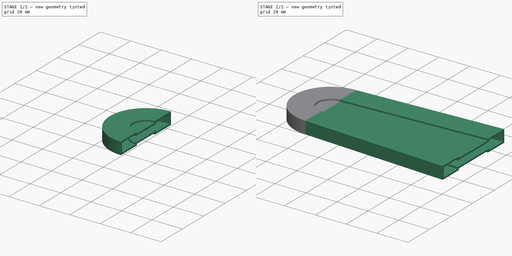
[diagram: build sequence overview — one tinted view per stage of 2, left to right]
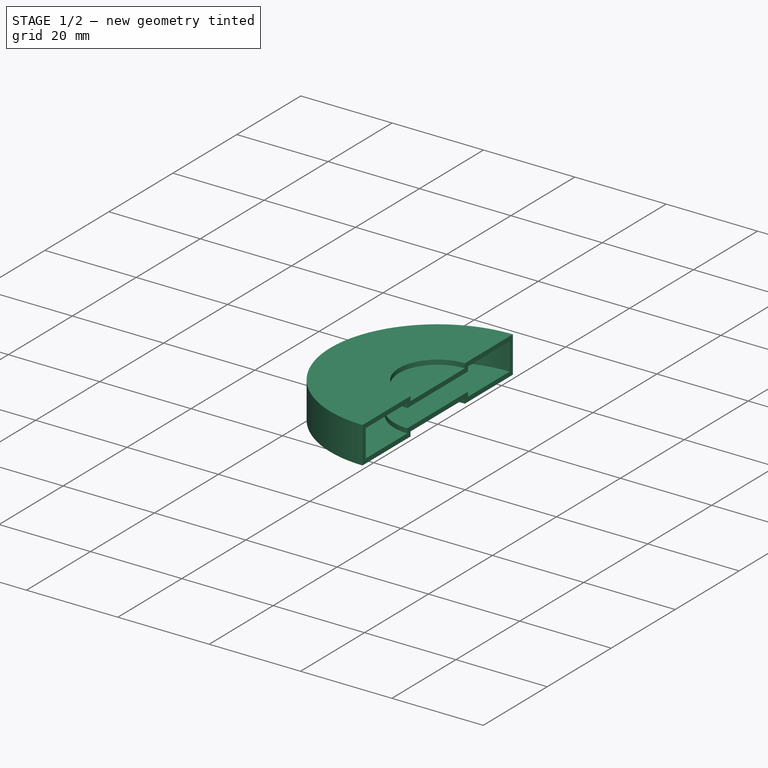
[diagram: stage 1 of 2 — iso view after this stage's code; geometry added in this stage tinted green]
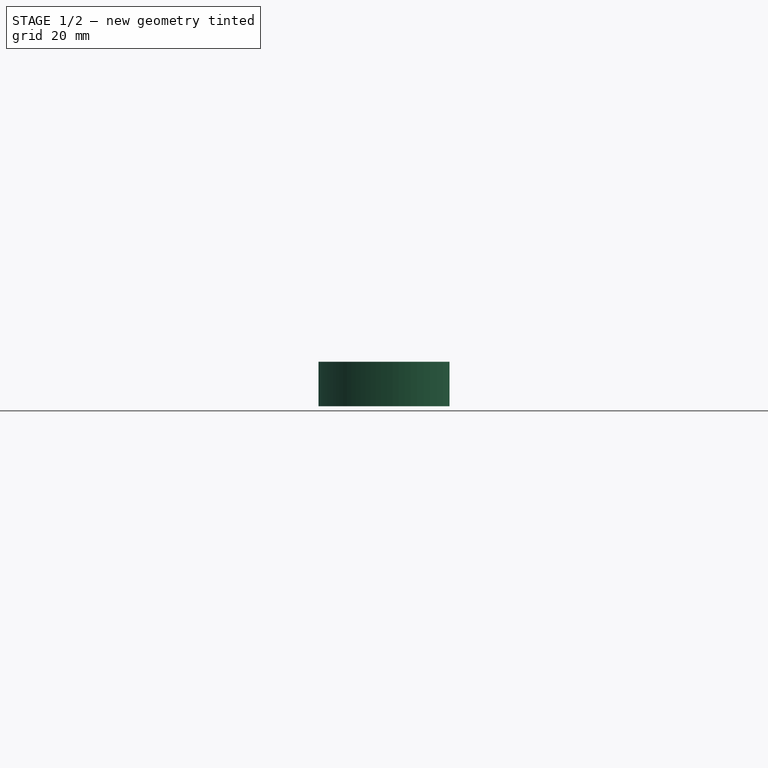
[diagram: stage 1 of 2 — front view after this stage's code; geometry added in this stage tinted green]
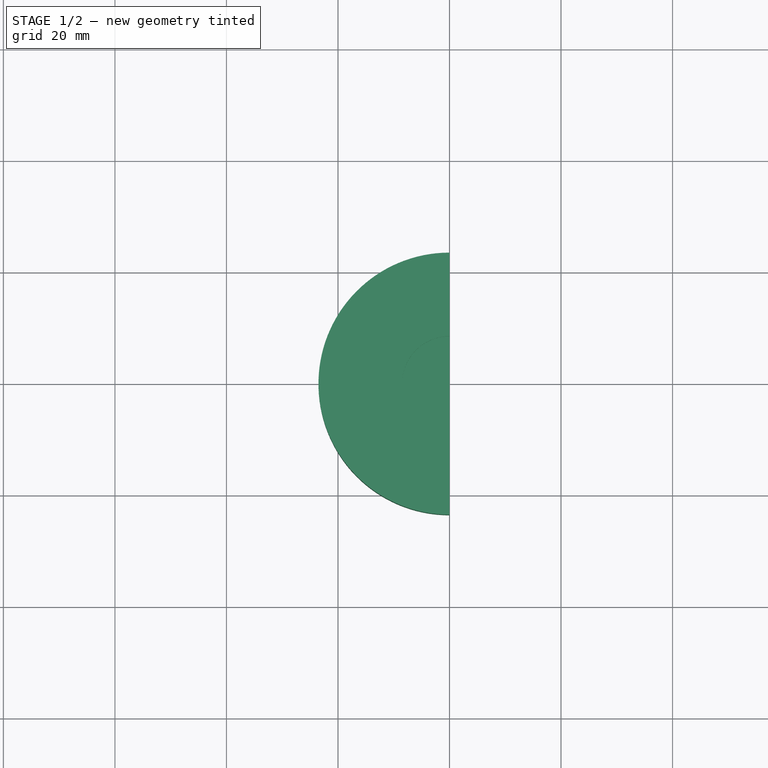
[diagram: stage 1 of 2 — top view after this stage's code; geometry added in this stage tinted green]
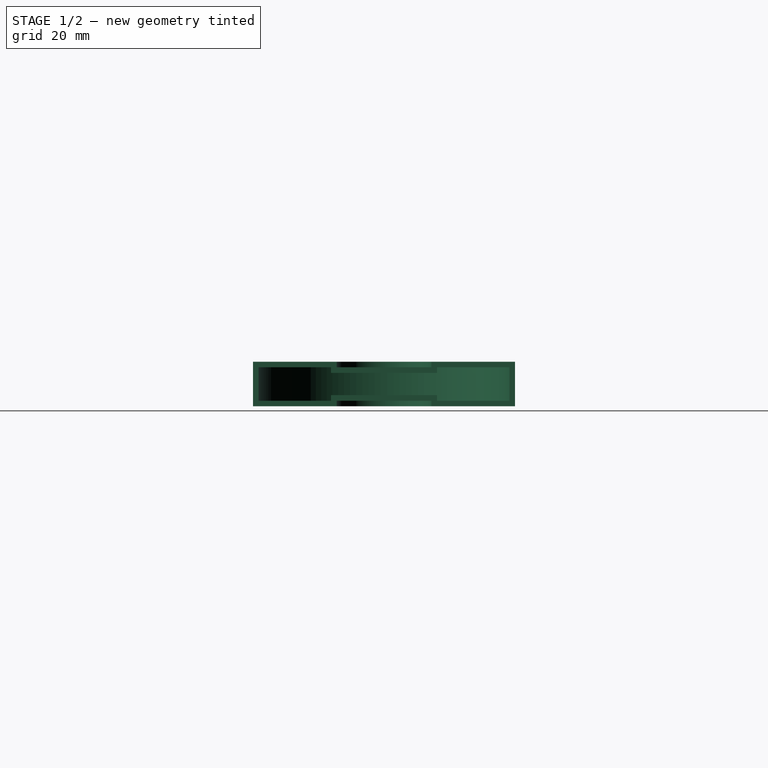
[diagram: stage 1 of 2 — right view after this stage's code; geometry added in this stage tinted green]
FCSTD DOCUMENT  (FreeCAD 0.19R28189 (Git))
Label: hoesje rotated v1
License: All rights reserved
objects: Sketcher::SketchObject×6, PartDesign::SubShapeBinder×4, Spreadsheet::Sheet×1, PartDesign::Revolution×1, PartDesign::Groove×1, PartDesign::AdditiveLoft×1, PartDesign::SubtractiveLoft×1, PartDesign::Body×1
note: 23 computed .brp shape members not serialized (recipe doc carries the construction recipe); baked Part::Feature solids carry a one-line shape summary decoded from their .brp

FEATURE [Sketcher::SketchObject] Sketch  label="OuterShell"
  FullyConstrained = true
  MapMode = 5
  Placement = pos=(0,0,0) rot=(0.57735,0.57735,0.57735;2.0944rad)
  Support = -> [YZ_Plane]
  expr: Constraints[16] = <<values>>.straalCirkel - 1
  expr: Constraints[17] = <<values>>.smalleBaan + 1
  expr: Constraints[18] = <<values>>.volledigeHoogte
  expr: Constraints[19] = <<values>>.cutoutHoogte
  sketch-geometry (8):
    g0: LineSegment StartX=0 StartY=3 StartZ=0 EndX=-8.5 EndY=3 EndZ=0
    g1: LineSegment StartX=0 StartY=-3 StartZ=0 EndX=-8.5 EndY=-3 EndZ=0
    g2: LineSegment StartX=-8.5 StartY=3 StartZ=0 EndX=-8.5 EndY=4 EndZ=0
    g3: LineSegment StartX=-8.5 StartY=-4 StartZ=0 EndX=-8.5 EndY=-3 EndZ=0
    g4: LineSegment StartX=-23.5 StartY=4 StartZ=0 EndX=-8.5 EndY=4 EndZ=0
    g5: LineSegment StartX=-23.5 StartY=4 StartZ=0 EndX=-23.5 EndY=-4 EndZ=0
    g6: LineSegment StartX=-23.5 StartY=-4 StartZ=0 EndX=-8.5 EndY=-4 EndZ=0
    g7: LineSegment StartX=0 StartY=3 StartZ=0 EndX=0 EndY=-3 EndZ=0
  constraints (23):
    c: PointOnObject(g0,g-2)
    c: Horizontal(g0)
    c: Horizontal(g1)
    c: Equal(g0,g1)
    c: Coincident(g2,g0)
    c: Coincident(g1,g3)
    c: Vertical(g2)
    c: Vertical(g3)
    c: Equal(g3,g2)
    c: Horizontal(g4)
    c: Vertical(g5)
    c: Horizontal(g6)
    c: Coincident(g4,g2)
    c: Coincident(g6,g3)
    c: Coincident(g5,g6)
    c: Coincident(g5,g4)
    c: DistanceX(g0,g0) = 8.5
    c: DistanceX(g4,g4) = 15
    c: DistanceY(g5,g5) = 8
    c: DistanceY(g1,g0) = 6
    c: Symmetric(g0,g1,g-1)
    c: Coincident(g0,g7)
    c: Coincident(g7,g1)
FEATURE [Spreadsheet::Sheet] Spreadsheet  label="values"
  PythonMode = false
  cells = A1=Smalle baan; B1(smalleBaan)=14; A2=Brede baan; B2(bredeBaan)=29; A3=Volledige hoogte; B3(volledigeHoogte)=8; A4=Cutout Hoogte; B4(cutoutHoogte)=6; A5=Straal Cirkel; B5(straalCirkel)=9.5; A6='Bi
FEATURE [PartDesign::Revolution] Revolution
  Angle = 180
  Axis = (-2e-16,3e-16,1)
  Base = (0,0,0)
  ClaimChildren = false
  Fit = 0
  FitJoin = 0
  InnerFit = 0
  InnerFitJoin = 0
  NewSolid = false
  Placement = pos=(0,0,0) rot=(0.57735,0.57735,0.57735;2.0944rad)
  Profile = -> Sketch
  ReferenceAxis = -> Sketch [V_Axis]
  Reversed = true
  Suppress = false
  _ProfileBasedVersion = 1
FEATURE [Sketcher::SketchObject] Sketch001  label="CutOut"
  FullyConstrained = true
  MapMode = 5
  Placement = pos=(0,0,0) rot=(0.57735,0.57735,0.57735;2.0944rad)
  Support = -> [YZ_Plane001]
  expr: Constraints[16] = Unnamed#<<values>>.straalCirkel
  expr: Constraints[17] = Unnamed#<<values>>.smalleBaan - 1
  expr: Constraints[18] = Unnamed#<<values>>.volledigeHoogte - 2
  expr: Constraints[19] = Unnamed#<<values>>.cutoutHoogte - 2
  sketch-geometry (8):
    g0: LineSegment StartX=0 StartY=2 StartZ=0 EndX=-9.5 EndY=2 EndZ=0
    g1: LineSegment StartX=0 StartY=-2 StartZ=0 EndX=-9.5 EndY=-2 EndZ=0
    g2: LineSegment StartX=-9.5 StartY=2 StartZ=0 EndX=-9.5 EndY=3 EndZ=0
    g3: LineSegment StartX=-9.5 StartY=-3 StartZ=0 EndX=-9.5 EndY=-2 EndZ=0
    g4: LineSegment StartX=-22.5 StartY=3 StartZ=0 EndX=-9.5 EndY=3 EndZ=0
    g5: LineSegment StartX=-22.5 StartY=3 StartZ=0 EndX=-22.5 EndY=-3 EndZ=0
    g6: LineSegment StartX=-22.5 StartY=-3 StartZ=0 EndX=-9.5 EndY=-3 EndZ=0
    g7: LineSegment StartX=0 StartY=2 StartZ=0 EndX=0 EndY=-2 EndZ=0
  constraints (23):
    c: PointOnObject(g0,g-2)
    c: Horizontal(g0)
    c: Horizontal(g1)
    c: Equal(g0,g1)
    c: Coincident(g2,g0)
    c: Coincident(g1,g3)
    c: Vertical(g2)
    c: Vertical(g3)
    c: Equal(g3,g2)
    c: Horizontal(g4)
    c: Vertical(g5)
    c: Horizontal(g6)
    c: Coincident(g4,g2)
    c: Coincident(g6,g3)
    c: Coincident(g5,g6)
    c: Coincident(g5,g4)
    c: DistanceX(g0,g0) = 9.5
    c: DistanceX(g4,g4) = 13
    c: DistanceY(g5,g5) = 6
    c: DistanceY(g1,g0) = 4
    c: Symmetric(g0,g1,g-1)
    c: Coincident(g0,g7)
    c: Coincident(g7,g1)
FEATURE [PartDesign::SubShapeBinder] Import  label="Import(CutOut)"
  BindCopyOnChange = 0
  BindMode = 0
  ClaimChildren = false
  Context = -> Body [Import.]
  FillStyle = 0
  Fuse = false
  MakeFace = false
  PartialLoad = false
  Relative = true
  Support = -> [Sketch001]
  _Version = 7
FEATURE [PartDesign::Groove] Groove
  Angle = 180
  Axis = (-3e-16,3e-16,1)
  Base = (0,0,0)
  BaseFeature = -> Revolution
  ClaimChildren = false
  Fit = 0
  FitJoin = 0
  InnerFit = 0
  InnerFitJoin = 0
  NewSolid = false
  Placement = pos=(0,0,0) rot=(0.57735,0.57735,0.57735;2.0944rad)
  Profile = -> Import
  ReferenceAxis = -> Z_Axis
  Reversed = true
  Suppress = false
  _ProfileBasedVersion = 1
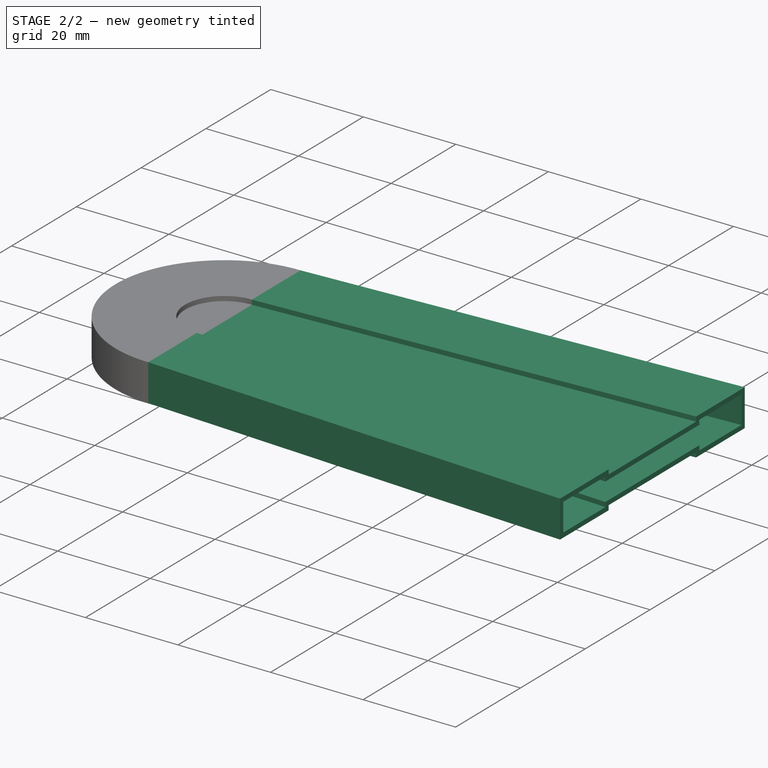
[diagram: stage 2 of 2 — iso view after this stage's code; geometry added in this stage tinted green]
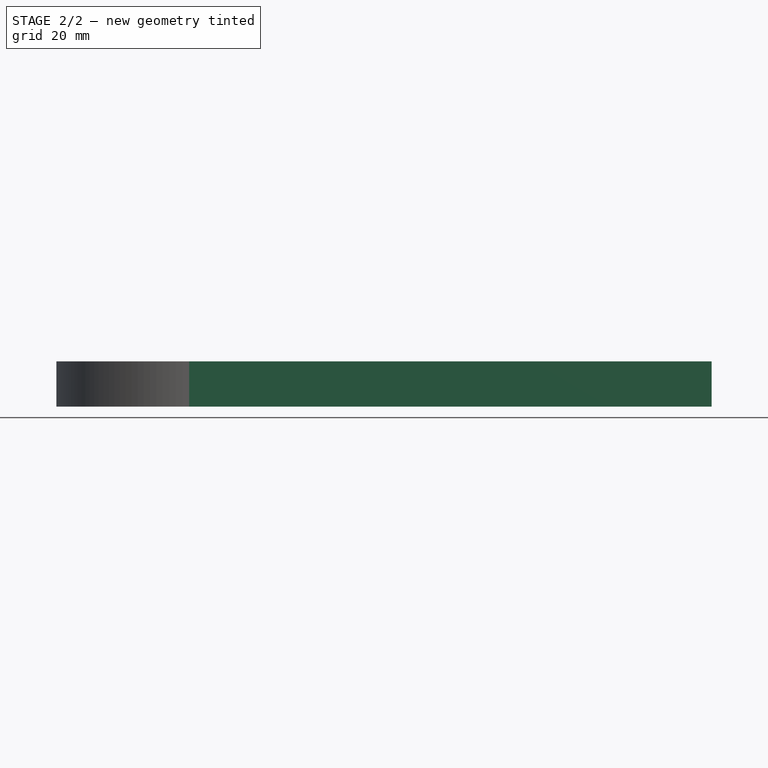
[diagram: stage 2 of 2 — front view after this stage's code; geometry added in this stage tinted green]
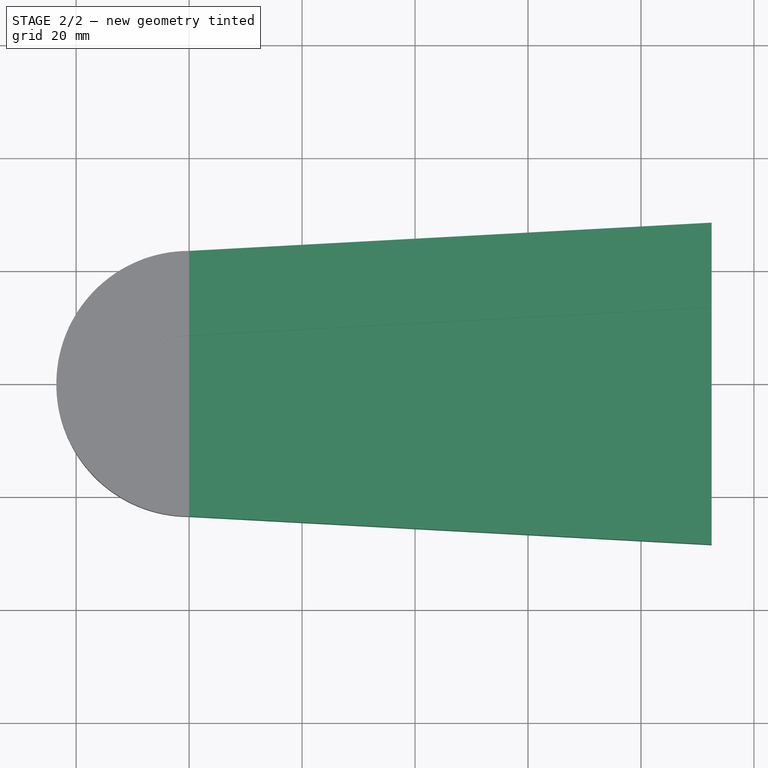
[diagram: stage 2 of 2 — top view after this stage's code; geometry added in this stage tinted green]
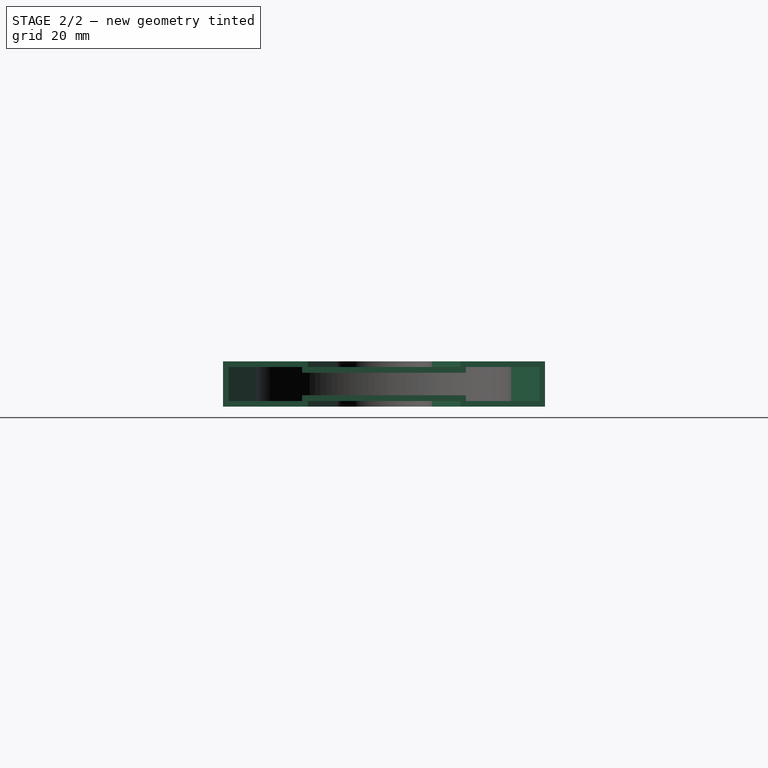
[diagram: stage 2 of 2 — right view after this stage's code; geometry added in this stage tinted green]
FEATURE [Sketcher::SketchObject] Sketch002  label="StartTailOuter"
  FullyConstrained = true
  MapMode = 5
  Placement = pos=(5.3e-15,0,0) rot=(0.57735,0.57735,0.57735;2.0944rad)
  Support = -> [Groove]
  expr: Constraints[18] = <<values>>.volledigeHoogte
  expr: Constraints[19] = <<values>>.smalleBaan + 1
  expr: Constraints[20] = <<values>>.straalCirkel * 2 - 2
  sketch-geometry (12):
    g0: LineSegment StartX=-23.5 StartY=4 StartZ=0 EndX=-8.5 EndY=4 EndZ=0
    g1: LineSegment StartX=-8.5 StartY=4 StartZ=0 EndX=-8.5 EndY=3 EndZ=0
    g2: LineSegment StartX=-8.5 StartY=3 StartZ=0 EndX=8.5 EndY=3 EndZ=0
    g3: LineSegment StartX=8.5 StartY=3 StartZ=0 EndX=8.5 EndY=4 EndZ=0
    g4: LineSegment StartX=8.5 StartY=4 StartZ=0 EndX=23.5 EndY=4 EndZ=0
    g5: LineSegment StartX=23.5 StartY=4 StartZ=0 EndX=23.5 EndY=-4 EndZ=0
    g6: LineSegment StartX=23.5 StartY=-4 StartZ=0 EndX=8.5 EndY=-4 EndZ=0
    g7: LineSegment StartX=8.5 StartY=-4 StartZ=0 EndX=8.5 EndY=-3 EndZ=0
    g8: LineSegment StartX=8.5 StartY=-3 StartZ=0 EndX=-8.5 EndY=-3 EndZ=0
    g9: LineSegment StartX=-8.5 StartY=-3 StartZ=0 EndX=-8.5 EndY=-4 EndZ=0
    g10: LineSegment StartX=-8.5 StartY=-4 StartZ=0 EndX=-23.5 EndY=-4 EndZ=0
    g11: LineSegment StartX=-23.5 StartY=-4 StartZ=0 EndX=-23.5 EndY=4 EndZ=0
  constraints (30):
    c: Horizontal(g0)
    c: Coincident(g0,g1)
    c: Coincident(g1,g2)
    c: Coincident(g2,g3)
    c: Coincident(g3,g4)
    c: Coincident(g4,g5)
    c: Vertical(g5)
    c: Coincident(g5,g6)
    c: Horizontal(g6)
    c: Coincident(g6,g7)
    c: Coincident(g7,g8)
    c: Coincident(g8,g9)
    c: Vertical(g9)
    c: Coincident(g9,g10)
    c: Horizontal(g10)
    c: Coincident(g10,g11)
    c: Coincident(g11,g0)
    c: Equal(g0,g10)
    c: DistanceY(g11,g11) = 8
    c: DistanceX(g0,g0) = 15
    c: DistanceX(g2,g2) = 17
    c: Symmetric(g0,g10,g-1)
    c: Symmetric(g0,g3,g-2)
    c: Symmetric(g1,g2,g-2)
    c: Symmetric(g8,g7,g-2)
    c: Symmetric(g9,g6,g-2)
    c: DistanceY(g9,g9) = 1
    c: Symmetric(g0,g4,g-2)
    c: Vertical(g1)
    c: DistanceY(g1,g1) = 1
FEATURE [Sketcher::SketchObject] Sketch003  label="EndTailOuter"
  AttachmentOffset = pos=(0,0,92.5) rot=(0,0,1;0rad)
  FullyConstrained = true
  MapMode = 5
  Placement = pos=(92.5,-7.19e-14,5.13e-14) rot=(0.57735,0.57735,0.57735;2.0944rad)
  Support = -> [Groove]
  expr: Constraints[18] = hoesje_rotated_v1#<<values>>.volledigeHoogte
  expr: Constraints[19] = hoesje_rotated_v1#<<values>>.smalleBaan + 1
  expr: Constraints[20] = <<values>>.bredeBaan - 2
  sketch-geometry (12):
    g0: LineSegment StartX=-28.5 StartY=4 StartZ=0 EndX=-13.5 EndY=4 EndZ=0
    g1: LineSegment StartX=-13.5 StartY=4 StartZ=0 EndX=-13.5 EndY=3 EndZ=0
    g2: LineSegment StartX=-13.5 StartY=3 StartZ=0 EndX=13.5 EndY=3 EndZ=0
    g3: LineSegment StartX=13.5 StartY=3 StartZ=0 EndX=13.5 EndY=4 EndZ=0
    g4: LineSegment StartX=13.5 StartY=4 StartZ=0 EndX=28.5 EndY=4 EndZ=0
    g5: LineSegment StartX=28.5 StartY=4 StartZ=0 EndX=28.5 EndY=-4 EndZ=0
    g6: LineSegment StartX=28.5 StartY=-4 StartZ=0 EndX=13.5 EndY=-4 EndZ=0
    g7: LineSegment StartX=13.5 StartY=-4 StartZ=0 EndX=13.5 EndY=-3 EndZ=0
    g8: LineSegment StartX=13.5 StartY=-3 StartZ=0 EndX=-13.5 EndY=-3 EndZ=0
    g9: LineSegment StartX=-13.5 StartY=-3 StartZ=0 EndX=-13.5 EndY=-4 EndZ=0
    g10: LineSegment StartX=-13.5 StartY=-4 StartZ=0 EndX=-28.5 EndY=-4 EndZ=0
    g11: LineSegment StartX=-28.5 StartY=-4 StartZ=0 EndX=-28.5 EndY=4 EndZ=0
  constraints (30):
    c: Horizontal(g0)
    c: Coincident(g0,g1)
    c: Coincident(g1,g2)
    c: Coincident(g2,g3)
    c: Coincident(g3,g4)
    c: Coincident(g4,g5)
    c: Vertical(g5)
    c: Coincident(g5,g6)
    c: Horizontal(g6)
    c: Coincident(g6,g7)
    c: Coincident(g7,g8)
    c: Coincident(g8,g9)
    c: Vertical(g9)
    c: Coincident(g9,g10)
    c: Horizontal(g10)
    c: Coincident(g10,g11)
    c: Coincident(g11,g0)
    c: Equal(g0,g10)
    c: DistanceY(g11,g11) = 8
    c: DistanceX(g0,g0) = 15
    c: DistanceX(g2,g2) = 27
    c: Symmetric(g0,g10,g-1)
    c: Symmetric(g0,g3,g-2)
    c: Symmetric(g1,g2,g-2)
    c: Symmetric(g8,g7,g-2)
    c: Symmetric(g9,g6,g-2)
    c: DistanceY(g9,g9) = 1
    c: Symmetric(g0,g4,g-2)
    c: Vertical(g1)
    c: DistanceY(g1,g1) = 1
FEATURE [PartDesign::SubShapeBinder] Import001  label="Import001(EndTailOuter)"
  BindCopyOnChange = 0
  BindMode = 0
  ClaimChildren = false
  Context = -> Body [Import001.]
  FillStyle = 0
  Fuse = false
  MakeFace = false
  PartialLoad = false
  Relative = true
  Support = -> [Sketch003]
  _Version = 7
FEATURE [PartDesign::AdditiveLoft] AdditiveLoft
  BaseFeature = -> Groove
  ClaimChildren = false
  Closed = false
  Fit = 0
  FitJoin = 0
  InnerFit = 0
  InnerFitJoin = 0
  NewSolid = false
  Placement = pos=(0,0,0) rot=(0.57735,0.57735,0.57735;2.0944rad)
  Profile = -> Sketch002
  Ruled = false
  Sections = -> [Import001]
  Suppress = false
  _ProfileBasedVersion = 1
FEATURE [Sketcher::SketchObject] Sketch004  label="StartTailInner"
  FullyConstrained = true
  MapMode = 5
  Placement = pos=(5.3e-15,0,0) rot=(0.57735,0.57735,0.57735;2.0944rad)
  Support = -> [Groove]
  expr: Constraints[18] = hoesje_rotated_v1#<<values>>.volledigeHoogte - 2
  expr: Constraints[19] = hoesje_rotated_v1#<<values>>.smalleBaan - 1
  expr: Constraints[20] = hoesje_rotated_v1#<<values>>.straalCirkel * 2
  sketch-geometry (12):
    g0: LineSegment StartX=-22.5 StartY=3 StartZ=0 EndX=-9.5 EndY=3 EndZ=0
    g1: LineSegment StartX=-9.5 StartY=3 StartZ=0 EndX=-9.5 EndY=2 EndZ=0
    g2: LineSegment StartX=-9.5 StartY=2 StartZ=0 EndX=9.5 EndY=2 EndZ=0
    g3: LineSegment StartX=9.5 StartY=2 StartZ=0 EndX=9.5 EndY=3 EndZ=0
    g4: LineSegment StartX=9.5 StartY=3 StartZ=0 EndX=22.5 EndY=3 EndZ=0
    g5: LineSegment StartX=22.5 StartY=3 StartZ=0 EndX=22.5 EndY=-3 EndZ=0
    g6: LineSegment StartX=22.5 StartY=-3 StartZ=0 EndX=9.5 EndY=-3 EndZ=0
    g7: LineSegment StartX=9.5 StartY=-3 StartZ=0 EndX=9.5 EndY=-2 EndZ=0
    g8: LineSegment StartX=9.5 StartY=-2 StartZ=0 EndX=-9.5 EndY=-2 EndZ=0
    g9: LineSegment StartX=-9.5 StartY=-2 StartZ=0 EndX=-9.5 EndY=-3 EndZ=0
    g10: LineSegment StartX=-9.5 StartY=-3 StartZ=0 EndX=-22.5 EndY=-3 EndZ=0
    g11: LineSegment StartX=-22.5 StartY=-3 StartZ=0 EndX=-22.5 EndY=3 EndZ=0
  constraints (30):
    c: Horizontal(g0)
    c: Coincident(g0,g1)
    c: Coincident(g1,g2)
    c: Coincident(g2,g3)
    c: Coincident(g3,g4)
    c: Coincident(g4,g5)
    c: Vertical(g5)
    c: Coincident(g5,g6)
    c: Horizontal(g6)
    c: Coincident(g6,g7)
    c: Coincident(g7,g8)
    c: Coincident(g8,g9)
    c: Vertical(g9)
    c: Coincident(g9,g10)
    c: Horizontal(g10)
    c: Coincident(g10,g11)
    c: Coincident(g11,g0)
    c: Equal(g0,g10)
    c: DistanceY(g11,g11) = 6
    c: DistanceX(g0,g0) = 13
    c: DistanceX(g2,g2) = 19
    c: Symmetric(g0,g10,g-1)
    c: Symmetric(g0,g3,g-2)
    c: Symmetric(g1,g2,g-2)
    c: Symmetric(g8,g7,g-2)
    c: Symmetric(g9,g6,g-2)
    c: DistanceY(g9,g9) = 1
    c: Symmetric(g0,g4,g-2)
    c: Vertical(g1)
    c: DistanceY(g1,g1) = 1
FEATURE [Sketcher::SketchObject] Sketch005  label="EndTailInner"
  AttachmentOffset = pos=(0,0,92.5) rot=(0,0,1;0rad)
  FullyConstrained = true
  MapMode = 5
  Placement = pos=(92.5,-7.19e-14,5.13e-14) rot=(0.57735,0.57735,0.57735;2.0944rad)
  Support = -> [Groove]
  expr: Constraints[18] = hoesje_rotated_v1#<<values>>.volledigeHoogte - 2
  expr: Constraints[19] = hoesje_rotated_v1#<<values>>.smalleBaan - 1
  expr: Constraints[20] = hoesje_rotated_v1#<<values>>.bredeBaan
  sketch-geometry (12):
    g0: LineSegment StartX=-27.5 StartY=3 StartZ=0 EndX=-14.5 EndY=3 EndZ=0
    g1: LineSegment StartX=-14.5 StartY=3 StartZ=0 EndX=-14.5 EndY=2 EndZ=0
    g2: LineSegment StartX=-14.5 StartY=2 StartZ=0 EndX=14.5 EndY=2 EndZ=0
    g3: LineSegment StartX=14.5 StartY=2 StartZ=0 EndX=14.5 EndY=3 EndZ=0
    g4: LineSegment StartX=14.5 StartY=3 StartZ=0 EndX=27.5 EndY=3 EndZ=0
    g5: LineSegment StartX=27.5 StartY=3 StartZ=0 EndX=27.5 EndY=-3 EndZ=0
    g6: LineSegment StartX=27.5 StartY=-3 StartZ=0 EndX=14.5 EndY=-3 EndZ=0
    g7: LineSegment StartX=14.5 StartY=-3 StartZ=0 EndX=14.5 EndY=-2 EndZ=0
    g8: LineSegment StartX=14.5 StartY=-2 StartZ=0 EndX=-14.5 EndY=-2 EndZ=0
    g9: LineSegment StartX=-14.5 StartY=-2 StartZ=0 EndX=-14.5 EndY=-3 EndZ=0
    g10: LineSegment StartX=-14.5 StartY=-3 StartZ=0 EndX=-27.5 EndY=-3 EndZ=0
    g11: LineSegment StartX=-27.5 StartY=-3 StartZ=0 EndX=-27.5 EndY=3 EndZ=0
  constraints (30):
    c: Horizontal(g0)
    c: Coincident(g0,g1)
    c: Coincident(g1,g2)
    c: Coincident(g2,g3)
    c: Coincident(g3,g4)
    c: Coincident(g4,g5)
    c: Vertical(g5)
    c: Coincident(g5,g6)
    c: Horizontal(g6)
    c: Coincident(g6,g7)
    c: Coincident(g7,g8)
    c: Coincident(g8,g9)
    c: Vertical(g9)
    c: Coincident(g9,g10)
    c: Horizontal(g10)
    c: Coincident(g10,g11)
    c: Coincident(g11,g0)
    c: Equal(g0,g10)
    c: DistanceY(g11,g11) = 6
    c: DistanceX(g0,g0) = 13
    c: DistanceX(g2,g2) = 29
    c: Symmetric(g0,g10,g-1)
    c: Symmetric(g0,g3,g-2)
    c: Symmetric(g1,g2,g-2)
    c: Symmetric(g8,g7,g-2)
    c: Symmetric(g9,g6,g-2)
    c: DistanceY(g9,g9) = 1
    c: Symmetric(g0,g4,g-2)
    c: Vertical(g1)
    c: DistanceY(g1,g1) = 1
FEATURE [PartDesign::SubShapeBinder] Import002  label="Import002(StartTailInner)"
  BindCopyOnChange = 0
  BindMode = 0
  ClaimChildren = false
  Context = -> Body [Import002.]
  FillStyle = 0
  Fuse = false
  MakeFace = false
  PartialLoad = false
  Relative = true
  Support = -> [Sketch004]
  _Version = 7
FEATURE [PartDesign::SubShapeBinder] Import003  label="Import003(EndTailInner)"
  BindCopyOnChange = 0
  BindMode = 0
  ClaimChildren = false
  Context = -> Body [Import003.]
  FillStyle = 0
  Fuse = false
  MakeFace = false
  PartialLoad = false
  Relative = true
  Support = -> [Sketch005]
  _Version = 7
FEATURE [PartDesign::SubtractiveLoft] SubtractiveLoft
  BaseFeature = -> AdditiveLoft
  ClaimChildren = false
  Closed = false
  Fit = 0
  FitJoin = 0
  InnerFit = 0
  InnerFitJoin = 0
  NewSolid = false
  Placement = pos=(0,0,0) rot=(0.57735,0.57735,0.57735;2.0944rad)
  Profile = -> Import002
  Ruled = false
  Sections = -> [Import003]
  Suppress = false
  _ProfileBasedVersion = 1
FEATURE [PartDesign::Body] Body
  AutoGroupSolids = false
  ExportMode = 0
  Group = -> [Sketch,Revolution,Import,Groove,Sketch002,AdditiveLoft,Import001,Import002,SubtractiveLoft,Import003]
  Origin = -> Origin
  Tip = -> SubtractiveLoft
  _ExportChildren = -> [Revolution,Groove,AdditiveLoft,SubtractiveLoft]
  _GroupVersion = 1
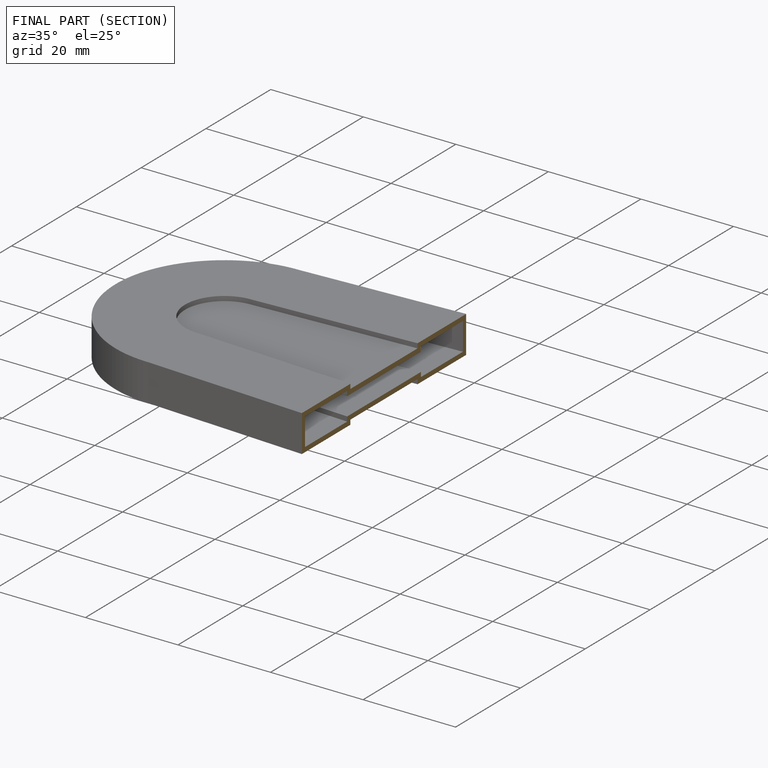
[diagram: finished part — half-section view (interior)]
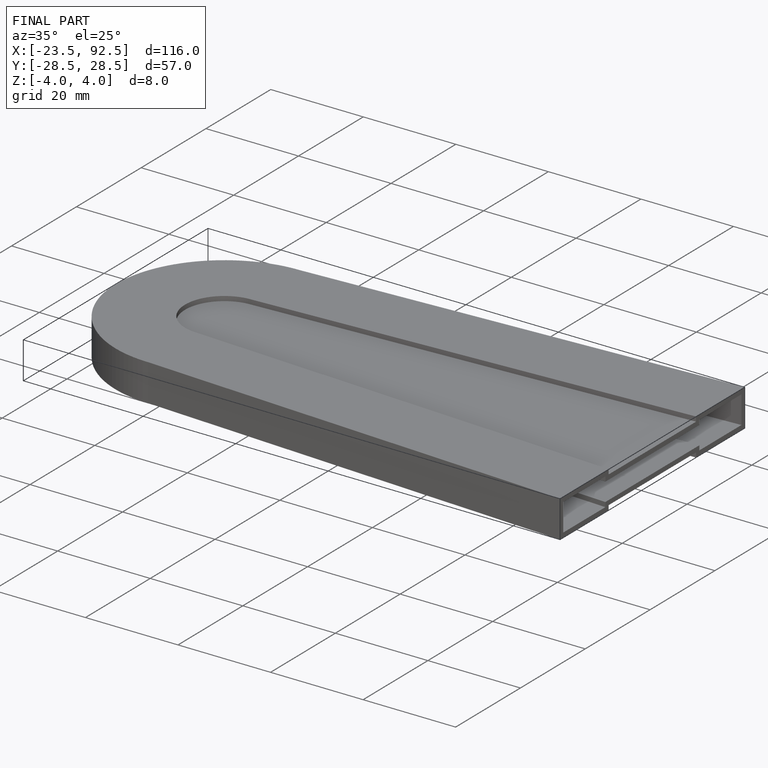
[diagram: finished part — iso view with bounding-box wireframe]
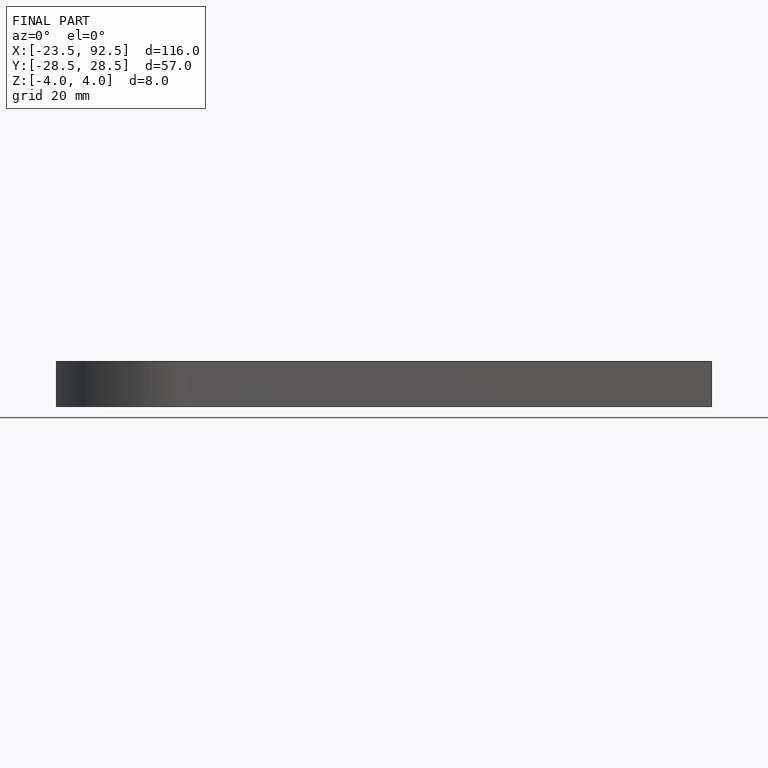
[diagram: finished part — front view with bounding-box wireframe]
